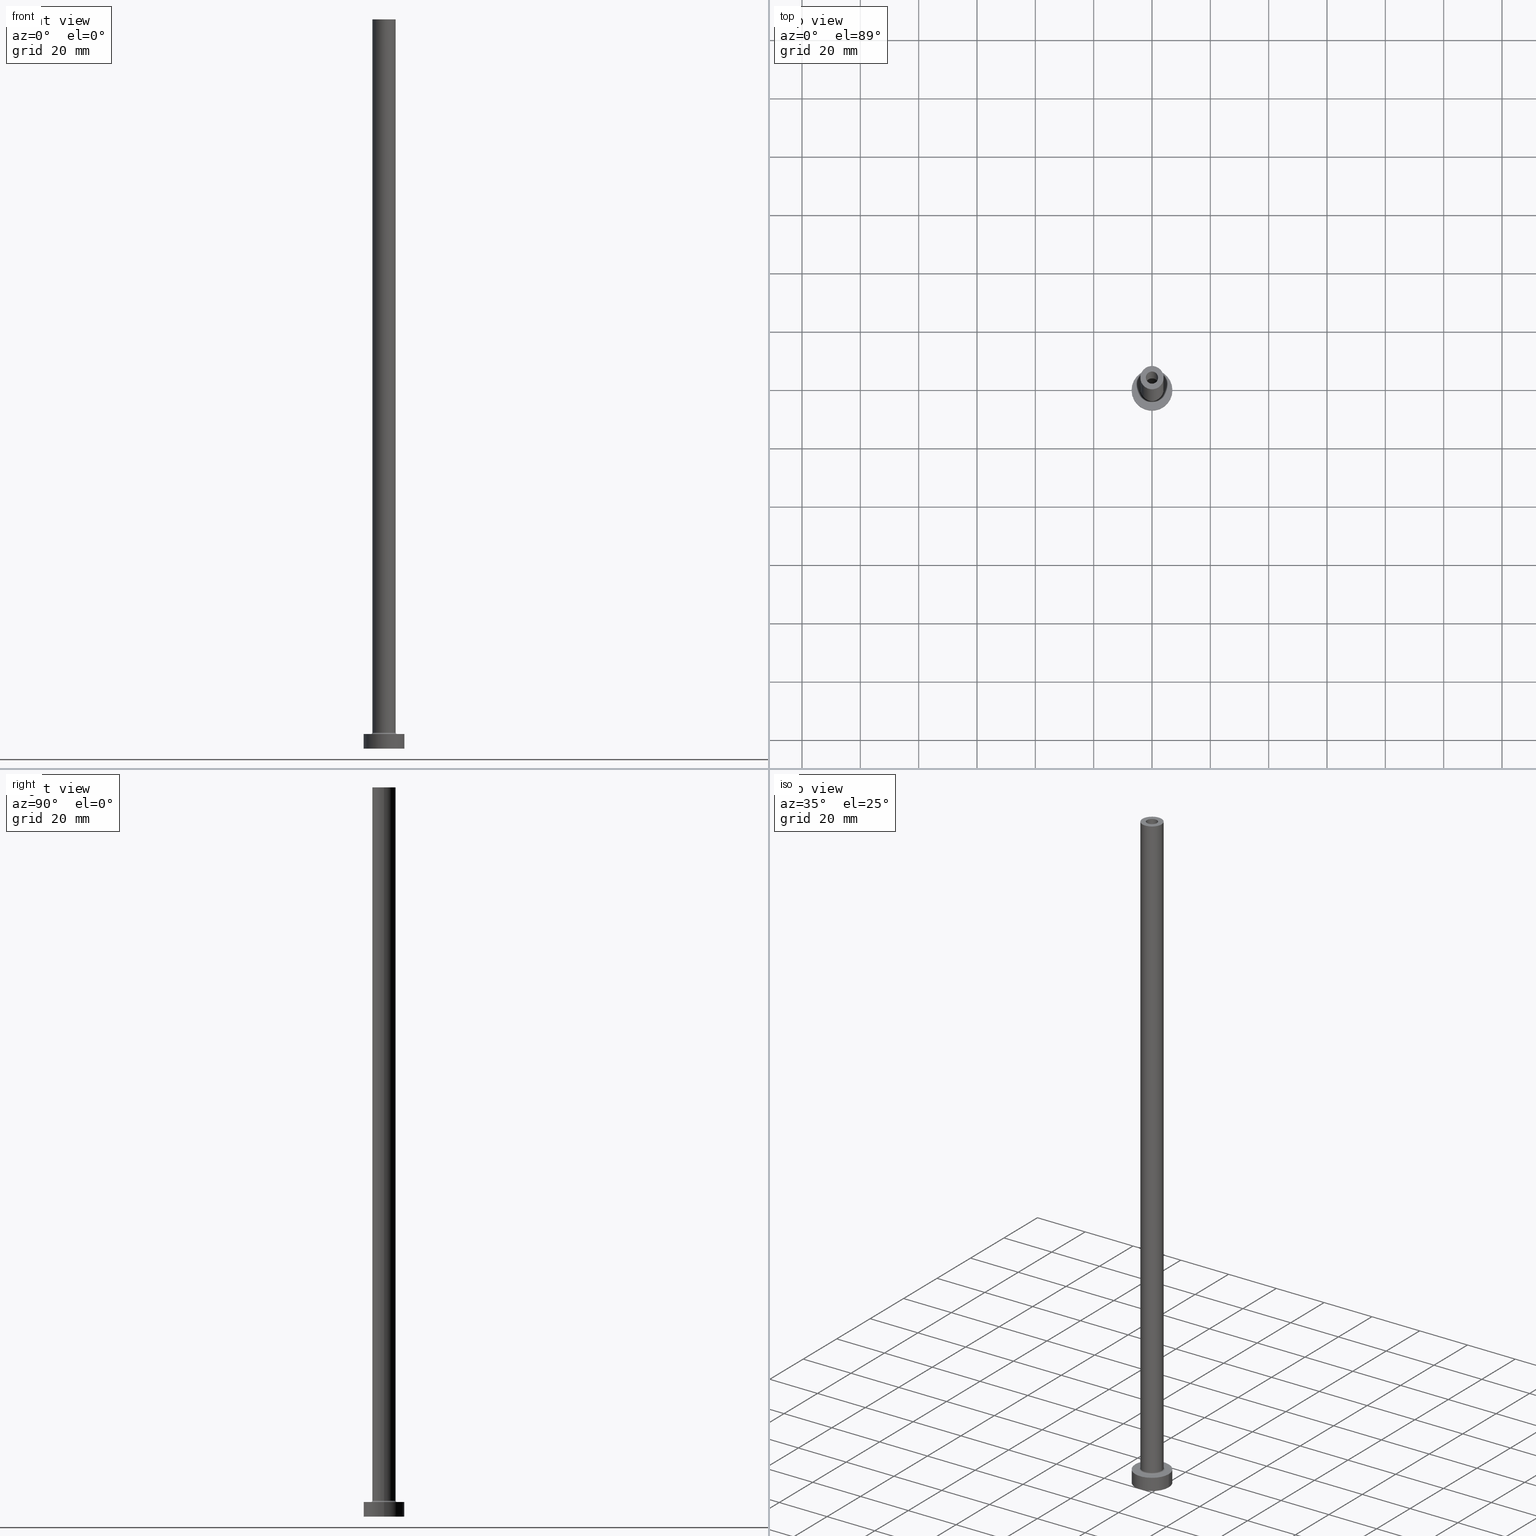
[diagram: canonical four-view strip — front | top / right | iso, engineering-drawing reading convention]
A machine part, canonical four-view strip (front | top / right | iso — engineering-drawing reading convention). The complete STEP part file that produces these views, byte-faithful:
ISO-10303-21;
HEADER;
FILE_DESCRIPTION (( 'STEP AP203' ),
    '1' );
FILE_NAME ('19cd.STEP',
    '2023-02-13T11:06:25',
    ( '' ),
    ( '' ),
    'SwSTEP 2.0',
    'SolidWorks 2019',
    '' );
FILE_SCHEMA (( 'CONFIG_CONTROL_DESIGN' ));
ENDSEC;

DATA;
#1 = CIRCLE ( 'NONE', #320, 7.000000000000000000 ) ;
#2 = CARTESIAN_POINT ( 'NONE',  ( 0.000000000000000000, 0.000000000000000000, 250.0000000000000000 ) ) ;
#3 = CYLINDRICAL_SURFACE ( 'NONE', #330, 2.100000000000000089 ) ;
#4 = ADVANCED_FACE ( 'NONE', ( #84 ), #351, .T. ) ;
#5 = DIRECTION ( 'NONE',  ( 0.000000000000000000, 0.000000000000000000, 1.000000000000000000 ) ) ;
#6 = DIRECTION ( 'NONE',  ( 1.000000000000000000, 0.000000000000000000, 0.000000000000000000 ) ) ;
#7 = VERTEX_POINT ( 'NONE', #276 ) ;
#8 = CARTESIAN_POINT ( 'NONE',  ( 0.000000000000000000, 0.000000000000000000, 5.500000000000005329 ) ) ;
#9 = ORIENTED_EDGE ( 'NONE', *, *, #43, .F. ) ;
#10 = PLANE ( 'NONE',  #29 ) ;
#11 = EDGE_CURVE ( 'NONE', #65, #7, #426, .T. ) ;
#12 = DATE_TIME_ROLE ( 'creation_date' ) ;
#13 = ORIENTED_EDGE ( 'NONE', *, *, #403, .F. ) ;
#14 = DIRECTION ( 'NONE',  ( 1.000000000000000000, 0.000000000000000000, -0.000000000000000000 ) ) ;
#15 = PERSON_AND_ORGANIZATION_ROLE ( 'design_supplier' ) ;
#16 = TOROIDAL_SURFACE ( 'NONE', #383, 4.500000000000000888, 0.5000000000000000000 ) ;
#17 = ORIENTED_EDGE ( 'NONE', *, *, #91, .T. ) ;
#18 = DIRECTION ( 'NONE',  ( 1.000000000000000000, 0.000000000000000000, 0.000000000000000000 ) ) ;
#19 = CIRCLE ( 'NONE', #419, 2.250000000000000000 ) ;
#20 = DATE_TIME_ROLE ( 'classification_date' ) ;
#21 = VECTOR ( 'NONE', #436, 1000.000000000000000 ) ;
#22 = CIRCLE ( 'NONE', #456, 2.250000000000000000 ) ;
#23 = EDGE_LOOP ( 'NONE', ( #177, #112, #259, #116 ) ) ;
#24 = CARTESIAN_POINT ( 'NONE',  ( 0.000000000000000000, 0.000000000000000000, 205.0000000000000284 ) ) ;
#25 = FACE_BOUND ( 'NONE', #77, .T. ) ;
#26 = ADVANCED_FACE ( 'NONE', ( #25, #159 ), #195, .T. ) ;
#27 = AXIS2_PLACEMENT_3D ( 'NONE', #128, #378, #451 ) ;
#28 = CARTESIAN_POINT ( 'NONE',  ( 0.000000000000000000, 0.000000000000000000, 250.0000000000000000 ) ) ;
#29 = AXIS2_PLACEMENT_3D ( 'NONE', #188, #78, #340 ) ;
#30 = CIRCLE ( 'NONE', #173, 2.100000000000000089 ) ;
#31 = CARTESIAN_POINT ( 'NONE',  ( 0.000000000000000000, 0.000000000000000000, 0.000000000000000000 ) ) ;
#32 = EDGE_LOOP ( 'NONE', ( #147, #304, #252, #454 ) ) ;
#33 = EDGE_CURVE ( 'NONE', #47, #123, #61, .T. ) ;
#34 = FACE_OUTER_BOUND ( 'NONE', #273, .T. ) ;
#35 = CARTESIAN_POINT ( 'NONE',  ( 0.000000000000000000, 0.000000000000000000, 0.000000000000000000 ) ) ;
#36 = MANIFOLD_SOLID_BREP ( 'Odebrat vysunut�m4', #274 ) ;
#37 = DIRECTION ( 'NONE',  ( 1.000000000000000000, 0.000000000000000000, -0.000000000000000000 ) ) ;
#38 = COORDINATED_UNIVERSAL_TIME_OFFSET ( 1, 0, .AHEAD. ) ;
#39 = LOCAL_TIME ( 12, 6, 25.00000000000000000, #114 ) ;
#40 = CIRCLE ( 'NONE', #133, 2.250000000000000000 ) ;
#41 = DIRECTION ( 'NONE',  ( -0.000000000000000000, -0.000000000000000000, -1.000000000000000000 ) ) ;
#42 = LINE ( 'NONE', #238, #119 ) ;
#43 = EDGE_CURVE ( 'NONE', #123, #47, #127, .T. ) ;
#44 = APPLICATION_CONTEXT ( 'configuration controlled 3d designs of mechanical parts and assemblies' ) ;
#45 = FACE_OUTER_BOUND ( 'NONE', #186, .T. ) ;
#46 = LINE ( 'NONE', #113, #277 ) ;
#47 = VERTEX_POINT ( 'NONE', #246 ) ;
#48 = EDGE_CURVE ( 'NONE', #369, #150, #93, .T. ) ;
#49 = CARTESIAN_POINT ( 'NONE',  ( 0.000000000000000000, 0.000000000000000000, 5.500000000000005329 ) ) ;
#50 = ORIENTED_EDGE ( 'NONE', *, *, #385, .F. ) ;
#51 = DIRECTION ( 'NONE',  ( -0.000000000000000000, -0.000000000000000000, -1.000000000000000000 ) ) ;
#52 = PERSON_AND_ORGANIZATION ( #349, #234 ) ;
#53 = ORIENTED_EDGE ( 'NONE', *, *, #280, .T. ) ;
#54 = CARTESIAN_POINT ( 'NONE',  ( 0.000000000000000000, 0.000000000000000000, 5.000000000000000000 ) ) ;
#55 = DATE_AND_TIME ( #413, #397 ) ;
#56 = EDGE_LOOP ( 'NONE', ( #9, #271, #334, #368 ) ) ;
#57 = AXIS2_PLACEMENT_3D ( 'NONE', #199, #356, #74 ) ;
#58 = EDGE_CURVE ( 'NONE', #146, #263, #67, .T. ) ;
#59 = APPROVAL_PERSON_ORGANIZATION ( #408, #232, #193 ) ;
#60 = DIRECTION ( 'NONE',  ( 1.000000000000000000, 0.000000000000000000, 0.000000000000000000 ) ) ;
#61 = CIRCLE ( 'NONE', #324, 7.000000000000000000 ) ;
#62 = CC_DESIGN_PERSON_AND_ORGANIZATION_ASSIGNMENT ( #328, #402, ( #66 ) ) ;
#63 = AXIS2_PLACEMENT_3D ( 'NONE', #2, #141, #105 ) ;
#64 = CYLINDRICAL_SURFACE ( 'NONE', #425, 4.000000000000000000 ) ;
#65 = VERTEX_POINT ( 'NONE', #249 ) ;
#66 = PRODUCT_DEFINITION ( 'NEZN�M�', '', #101, #235 ) ;
#67 = LINE ( 'NONE', #257, #218 ) ;
#68 = ORIENTED_EDGE ( 'NONE', *, *, #345, .F. ) ;
#69 = CYLINDRICAL_SURFACE ( 'NONE', #165, 2.250000000000000000 ) ;
#70 = CARTESIAN_POINT ( 'NONE',  ( 4.500000000000000888, 0.000000000000000000, 5.000000000000002665 ) ) ;
#71 = EDGE_CURVE ( 'NONE', #47, #414, #401, .T. ) ;
#72 = DIRECTION ( 'NONE',  ( 0.000000000000000000, 0.000000000000000000, -1.000000000000000000 ) ) ;
#73 = CIRCLE ( 'NONE', #291, 4.000000000000000000 ) ;
#74 = DIRECTION ( 'NONE',  ( 1.000000000000000000, 0.000000000000000000, 0.000000000000000000 ) ) ;
#75 = FACE_OUTER_BOUND ( 'NONE', #440, .T. ) ;
#76 = AXIS2_PLACEMENT_3D ( 'NONE', #394, #288, #204 ) ;
#77 = EDGE_LOOP ( 'NONE', ( #191, #153 ) ) ;
#78 = DIRECTION ( 'NONE',  ( 0.000000000000000000, 0.000000000000000000, 1.000000000000000000 ) ) ;
#79 = CARTESIAN_POINT ( 'NONE',  ( -2.100000000000000089, 0.000000000000000000, 205.0000000000000284 ) ) ;
#80 = VERTEX_POINT ( 'NONE', #364 ) ;
#81 = FACE_OUTER_BOUND ( 'NONE', #120, .T. ) ;
#82 = AXIS2_PLACEMENT_3D ( 'NONE', #35, #323, #431 ) ;
#83 = VECTOR ( 'NONE', #104, 1000.000000000000000 ) ;
#84 = FACE_OUTER_BOUND ( 'NONE', #23, .T. ) ;
#85 = CARTESIAN_POINT ( 'NONE',  ( -2.250000000000000000, 0.000000000000000000, 205.0000000000000284 ) ) ;
#86 = FACE_BOUND ( 'NONE', #217, .T. ) ;
#87 = APPROVAL_DATE_TIME ( #55, #232 ) ;
#88 = VERTEX_POINT ( 'NONE', #79 ) ;
#89 = ORIENTED_EDGE ( 'NONE', *, *, #424, .F. ) ;
#90 = FACE_OUTER_BOUND ( 'NONE', #255, .T. ) ;
#91 = EDGE_CURVE ( 'NONE', #205, #457, #42, .T. ) ;
#92 = PERSON_AND_ORGANIZATION ( #349, #234 ) ;
#93 = CIRCLE ( 'NONE', #314, 0.5000000000000004441 ) ;
#94 = APPROVAL_PERSON_ORGANIZATION ( #52, #321, #151 ) ;
#95 = CALENDAR_DATE ( 2023, 13, 2 ) ;
#96 = AXIS2_PLACEMENT_3D ( 'NONE', #286, #174, #135 ) ;
#97 = DIRECTION ( 'NONE',  ( 0.000000000000000000, 0.000000000000000000, 1.000000000000000000 ) ) ;
#98 = EDGE_CURVE ( 'NONE', #205, #296, #416, .T. ) ;
#99 = CARTESIAN_POINT ( 'NONE',  ( 4.000000000000000000, 4.898587196589412829E-16, 250.0000000000000000 ) ) ;
#100 = AXIS2_PLACEMENT_3D ( 'NONE', #343, #382, #245 ) ;
#101 = PRODUCT_DEFINITION_FORMATION_WITH_SPECIFIED_SOURCE ( 'LIBOVOLN�', '', #302, .NOT_KNOWN. ) ;
#102 = CC_DESIGN_DATE_AND_TIME_ASSIGNMENT ( #312, #12, ( #66 ) ) ;
#103 = CARTESIAN_POINT ( 'NONE',  ( 0.000000000000000000, 0.000000000000000000, 211.3639610306789507 ) ) ;
#104 = DIRECTION ( 'NONE',  ( -0.000000000000000000, -0.000000000000000000, -1.000000000000000000 ) ) ;
#105 = DIRECTION ( 'NONE',  ( 1.000000000000000000, 0.000000000000000000, 0.000000000000000000 ) ) ;
#106 = DIRECTION ( 'NONE',  ( 0.000000000000000000, 0.000000000000000000, 1.000000000000000000 ) ) ;
#107 = DIRECTION ( 'NONE',  ( 1.000000000000000000, 0.000000000000000000, 0.000000000000000000 ) ) ;
#108 = DIRECTION ( 'NONE',  ( -0.000000000000000000, -0.000000000000000000, -1.000000000000000000 ) ) ;
#109 = DIRECTION ( 'NONE',  ( 0.000000000000000000, 0.000000000000000000, 1.000000000000000000 ) ) ;
#110 = CARTESIAN_POINT ( 'NONE',  ( 0.000000000000000000, 0.000000000000000000, 5.000000000000000000 ) ) ;
#111 = VECTOR ( 'NONE', #108, 1000.000000000000000 ) ;
#112 = ORIENTED_EDGE ( 'NONE', *, *, #424, .T. ) ;
#113 = CARTESIAN_POINT ( 'NONE',  ( -2.100000000000000089, 0.000000000000000000, 250.0000000000000000 ) ) ;
#114 = COORDINATED_UNIVERSAL_TIME_OFFSET ( 1, 0, .AHEAD. ) ;
#115 = ADVANCED_FACE ( 'NONE', ( #140, #283 ), #203, .F. ) ;
#116 = ORIENTED_EDGE ( 'NONE', *, *, #161, .F. ) ;
#117 = AXIS2_PLACEMENT_3D ( 'NONE', #313, #167, #37 ) ;
#118 = CARTESIAN_POINT ( 'NONE',  ( 0.000000000000000000, 0.000000000000000000, 205.0000000000000284 ) ) ;
#119 = VECTOR ( 'NONE', #171, 1000.000000000000000 ) ;
#120 = EDGE_LOOP ( 'NONE', ( #344, #326, #236, #441 ) ) ;
#121 = EDGE_LOOP ( 'NONE', ( #239, #190 ) ) ;
#122 = COORDINATED_UNIVERSAL_TIME_OFFSET ( 1, 0, .AHEAD. ) ;
#123 = VERTEX_POINT ( 'NONE', #211 ) ;
#124 = ADVANCED_FACE ( 'NONE', ( #461 ), #3, .F. ) ;
#125 = ORIENTED_EDGE ( 'NONE', *, *, #310, .T. ) ;
#126 = PERSON_AND_ORGANIZATION_ROLE ( 'creator' ) ;
#127 = CIRCLE ( 'NONE', #450, 7.000000000000000000 ) ;
#128 = CARTESIAN_POINT ( 'NONE',  ( 0.000000000000000000, 0.000000000000000000, 250.0000000000000000 ) ) ;
#129 = CC_DESIGN_APPROVAL ( #321, ( #101 ) ) ;
#130 = CC_DESIGN_DATE_AND_TIME_ASSIGNMENT ( #301, #20, ( #164 ) ) ;
#131 = ORIENTED_EDGE ( 'NONE', *, *, #389, .F. ) ;
#132 = AXIS2_PLACEMENT_3D ( 'NONE', #372, #222, #264 ) ;
#133 = AXIS2_PLACEMENT_3D ( 'NONE', #24, #183, #269 ) ;
#134 = ADVANCED_FACE ( 'NONE', ( #75 ), #16, .F. ) ;
#135 = DIRECTION ( 'NONE',  ( 1.000000000000000000, 0.000000000000000000, 0.000000000000000000 ) ) ;
#136 = CARTESIAN_POINT ( 'NONE',  ( 0.000000000000000000, 0.000000000000000000, 250.0000000000000000 ) ) ;
#137 = EDGE_CURVE ( 'NONE', #88, #457, #138, .T. ) ;
#138 = CIRCLE ( 'NONE', #305, 2.100000000000000089 ) ;
#139 = CARTESIAN_POINT ( 'NONE',  ( 0.000000000000000000, 0.000000000000000000, 250.0000000000000000 ) ) ;
#140 = FACE_BOUND ( 'NONE', #121, .T. ) ;
#141 = DIRECTION ( 'NONE',  ( 0.000000000000000000, 0.000000000000000000, 1.000000000000000000 ) ) ;
#142 = DIRECTION ( 'NONE',  ( 0.000000000000000000, 0.000000000000000000, -1.000000000000000000 ) ) ;
#143 = APPROVAL_ROLE ( '' ) ;
#144 = DIRECTION ( 'NONE',  ( 0.000000000000000000, 0.000000000000000000, 1.000000000000000000 ) ) ;
#145 = MECHANICAL_CONTEXT ( 'NONE', #44, 'mechanical' ) ;
#146 = VERTEX_POINT ( 'NONE', #391 ) ;
#147 = ORIENTED_EDGE ( 'NONE', *, *, #58, .F. ) ;
#148 = FACE_OUTER_BOUND ( 'NONE', #180, .T. ) ;
#149 = APPROVAL_DATE_TIME ( #231, #321 ) ;
#150 = VERTEX_POINT ( 'NONE', #70 ) ;
#151 = APPROVAL_ROLE ( '' ) ;
#152 = EDGE_CURVE ( 'NONE', #296, #205, #197, .T. ) ;
#153 = ORIENTED_EDGE ( 'NONE', *, *, #98, .F. ) ;
#154 = DIRECTION ( 'NONE',  ( 1.000000000000000000, 0.000000000000000000, 0.000000000000000000 ) ) ;
#155 = CIRCLE ( 'NONE', #63, 4.000000000000000000 ) ;
#156 = VECTOR ( 'NONE', #215, 1000.000000000000000 ) ;
#157 = EDGE_LOOP ( 'NONE', ( #50, #399, #318, #370 ) ) ;
#158 = DIRECTION ( 'NONE',  ( -1.000000000000000000, 1.224646799147351482E-16, 0.000000000000000000 ) ) ;
#159 = FACE_OUTER_BOUND ( 'NONE', #266, .T. ) ;
#160 = DIRECTION ( 'NONE',  ( 1.000000000000000000, 0.000000000000000000, 0.000000000000000000 ) ) ;
#161 = EDGE_CURVE ( 'NONE', #65, #309, #169, .T. ) ;
#162 = DIRECTION ( 'NONE',  ( -1.000000000000000000, 0.000000000000000000, 0.000000000000000000 ) ) ;
#163 = EDGE_CURVE ( 'NONE', #146, #371, #253, .T. ) ;
#164 = SECURITY_CLASSIFICATION ( '', '', #265 ) ;
#165 = AXIS2_PLACEMENT_3D ( 'NONE', #103, #430, #361 ) ;
#166 = DIRECTION ( 'NONE',  ( 0.000000000000000000, 0.000000000000000000, 1.000000000000000000 ) ) ;
#167 = DIRECTION ( 'NONE',  ( 0.000000000000000000, 0.000000000000000000, 1.000000000000000000 ) ) ;
#168 = EDGE_CURVE ( 'NONE', #414, #80, #1, .T. ) ;
#169 = LINE ( 'NONE', #289, #21 ) ;
#170 = ORIENTED_EDGE ( 'NONE', *, *, #11, .F. ) ;
#171 = DIRECTION ( 'NONE',  ( 0.000000000000000000, 0.000000000000000000, -1.000000000000000000 ) ) ;
#172 = DATE_AND_TIME ( #437, #363 ) ;
#173 = AXIS2_PLACEMENT_3D ( 'NONE', #206, #5, #327 ) ;
#174 = DIRECTION ( 'NONE',  ( -0.000000000000000000, -0.000000000000000000, -1.000000000000000000 ) ) ;
#175 = CARTESIAN_POINT ( 'NONE',  ( 4.500000000000000888, 0.000000000000000000, 5.500000000000005329 ) ) ;
#176 = CARTESIAN_POINT ( 'NONE',  ( 0.000000000000000000, 0.000000000000000000, 5.000000000000000000 ) ) ;
#177 = ORIENTED_EDGE ( 'NONE', *, *, #221, .F. ) ;
#178 = FACE_BOUND ( 'NONE', #374, .T. ) ;
#179 = APPROVAL_PERSON_ORGANIZATION ( #207, #202, #143 ) ;
#180 = EDGE_LOOP ( 'NONE', ( #220, #292 ) ) ;
#181 = CARTESIAN_POINT ( 'NONE',  ( 0.000000000000000000, 0.000000000000000000, 0.000000000000000000 ) ) ;
#182 = ORIENTED_EDGE ( 'NONE', *, *, #310, .F. ) ;
#183 = DIRECTION ( 'NONE',  ( 0.000000000000000000, 0.000000000000000000, 1.000000000000000000 ) ) ;
#184 = EDGE_CURVE ( 'NONE', #123, #80, #237, .T. ) ;
#185 = APPROVAL_STATUS ( 'not_yet_approved' ) ;
#186 = EDGE_LOOP ( 'NONE', ( #53, #388, #261, #131 ) ) ;
#187 = ORIENTED_EDGE ( 'NONE', *, *, #403, .T. ) ;
#188 = CARTESIAN_POINT ( 'NONE',  ( 0.000000000000000000, 0.000000000000000000, 5.000000000000000000 ) ) ;
#189 = SHAPE_DEFINITION_REPRESENTATION ( #444, #251 ) ;
#190 = ORIENTED_EDGE ( 'NONE', *, *, #455, .F. ) ;
#191 = ORIENTED_EDGE ( 'NONE', *, *, #152, .F. ) ;
#192 = DIRECTION ( 'NONE',  ( 0.000000000000000000, 0.000000000000000000, 1.000000000000000000 ) ) ;
#193 = APPROVAL_ROLE ( '' ) ;
#194 = AXIS2_PLACEMENT_3D ( 'NONE', #226, #219, #308 ) ;
#195 = PLANE ( 'NONE',  #117 ) ;
#196 = ADVANCED_FACE ( 'NONE', ( #459 ), #359, .T. ) ;
#197 = CIRCLE ( 'NONE', #100, 2.100000000000000089 ) ;
#198 = EDGE_CURVE ( 'NONE', #150, #342, #201, .T. ) ;
#199 = CARTESIAN_POINT ( 'NONE',  ( 0.000000000000000000, 0.000000000000000000, 205.0000000000000284 ) ) ;
#200 = VECTOR ( 'NONE', #317, 1000.000000000000000 ) ;
#201 = CIRCLE ( 'NONE', #96, 4.500000000000000888 ) ;
#202 = APPROVAL ( #362, 'NEUR�EN�' ) ;
#203 = PLANE ( 'NONE',  #82 ) ;
#204 = DIRECTION ( 'NONE',  ( 1.000000000000000000, 0.000000000000000000, 0.000000000000000000 ) ) ;
#205 = VERTEX_POINT ( 'NONE', #279 ) ;
#206 = CARTESIAN_POINT ( 'NONE',  ( 0.000000000000000000, 0.000000000000000000, 205.0000000000000284 ) ) ;
#207 = PERSON_AND_ORGANIZATION ( #349, #234 ) ;
#208 = DIRECTION ( 'NONE',  ( 1.000000000000000000, 0.000000000000000000, 0.000000000000000000 ) ) ;
#209 = LOCAL_TIME ( 12, 6, 25.00000000000000000, #406 ) ;
#210 = DIRECTION ( 'NONE',  ( 1.000000000000000000, 0.000000000000000000, 0.000000000000000000 ) ) ;
#211 = CARTESIAN_POINT ( 'NONE',  ( 7.000000000000000000, 8.572527594031473190E-16, 5.000000000000000000 ) ) ;
#212 = PERSON_AND_ORGANIZATION_ROLE ( 'design_owner' ) ;
#213 = EDGE_CURVE ( 'NONE', #342, #150, #268, .T. ) ;
#214 = ORIENTED_EDGE ( 'NONE', *, *, #198, .T. ) ;
#215 = DIRECTION ( 'NONE',  ( 0.000000000000000000, 0.000000000000000000, -1.000000000000000000 ) ) ;
#216 = COORDINATED_UNIVERSAL_TIME_OFFSET ( 1, 0, .AHEAD. ) ;
#217 = EDGE_LOOP ( 'NONE', ( #404, #247 ) ) ;
#218 = VECTOR ( 'NONE', #460, 1000.000000000000000 ) ;
#219 = DIRECTION ( 'NONE',  ( 0.000000000000000000, 0.000000000000000000, 1.000000000000000000 ) ) ;
#220 = ORIENTED_EDGE ( 'NONE', *, *, #280, .F. ) ;
#221 = EDGE_CURVE ( 'NONE', #7, #65, #155, .T. ) ;
#222 = DIRECTION ( 'NONE',  ( 0.000000000000000000, 0.000000000000000000, -1.000000000000000000 ) ) ;
#223 = CALENDAR_DATE ( 2023, 13, 2 ) ;
#224 = FACE_OUTER_BOUND ( 'NONE', #32, .T. ) ;
#225 = ORIENTED_EDGE ( 'NONE', *, *, #221, .T. ) ;
#226 = CARTESIAN_POINT ( 'NONE',  ( 0.000000000000000000, 0.000000000000000000, 0.000000000000000000 ) ) ;
#227 = ORIENTED_EDGE ( 'NONE', *, *, #152, .T. ) ;
#228 = CC_DESIGN_SECURITY_CLASSIFICATION ( #164, ( #101 ) ) ;
#229 = CARTESIAN_POINT ( 'NONE',  ( 0.000000000000000000, 0.000000000000000000, 5.500000000000005329 ) ) ;
#230 = AXIS2_PLACEMENT_3D ( 'NONE', #176, #41, #392 ) ;
#231 = DATE_AND_TIME ( #449, #209 ) ;
#232 = APPROVAL ( #445, 'NEUR�EN�' ) ;
#233 = EDGE_CURVE ( 'NONE', #457, #88, #30, .T. ) ;
#234 = ORGANIZATION ( 'NEUR�EN�', 'NEUR�EN�', '' ) ;
#235 = DESIGN_CONTEXT ( 'detailed design', #435, 'design' ) ;
#236 = ORIENTED_EDGE ( 'NONE', *, *, #71, .T. ) ;
#237 = LINE ( 'NONE', #390, #111 ) ;
#238 = CARTESIAN_POINT ( 'NONE',  ( 2.100000000000000089, 2.571758278209441464E-16, 250.0000000000000000 ) ) ;
#239 = ORIENTED_EDGE ( 'NONE', *, *, #284, .F. ) ;
#240 = VERTEX_POINT ( 'NONE', #427 ) ;
#241 = ADVANCED_FACE ( 'NONE', ( #34 ), #242, .F. ) ;
#242 = CYLINDRICAL_SURFACE ( 'NONE', #307, 2.100000000000000089 ) ;
#243 = DIRECTION ( 'NONE',  ( 1.000000000000000000, 0.000000000000000000, 0.000000000000000000 ) ) ;
#244 = CARTESIAN_POINT ( 'NONE',  ( 2.100000000000000089, 2.571758278209441464E-16, 205.0000000000000284 ) ) ;
#245 = DIRECTION ( 'NONE',  ( 1.000000000000000000, 0.000000000000000000, 0.000000000000000000 ) ) ;
#246 = CARTESIAN_POINT ( 'NONE',  ( -7.000000000000000000, 0.000000000000000000, 5.000000000000000000 ) ) ;
#247 = ORIENTED_EDGE ( 'NONE', *, *, #233, .T. ) ;
#248 = ADVANCED_FACE ( 'NONE', ( #45 ), #69, .F. ) ;
#249 = CARTESIAN_POINT ( 'NONE',  ( -4.000000000000000000, 0.000000000000000000, 250.0000000000000000 ) ) ;
#250 = PERSON_AND_ORGANIZATION ( #349, #234 ) ;
#251 = ADVANCED_BREP_SHAPE_REPRESENTATION ( '19cd', ( #36, #76 ), #347 ) ;
#252 = ORIENTED_EDGE ( 'NONE', *, *, #389, .T. ) ;
#253 = CIRCLE ( 'NONE', #57, 2.250000000000000000 ) ;
#254 = AXIS2_PLACEMENT_3D ( 'NONE', #49, #439, #154 ) ;
#255 = EDGE_LOOP ( 'NONE', ( #339, #409 ) ) ;
#256 = CYLINDRICAL_SURFACE ( 'NONE', #422, 7.000000000000000000 ) ;
#257 = CARTESIAN_POINT ( 'NONE',  ( 2.250000000000000000, 2.755455298081543792E-16, 211.3639610306789507 ) ) ;
#258 = APPROVAL_DATE_TIME ( #172, #202 ) ;
#259 = ORIENTED_EDGE ( 'NONE', *, *, #316, .T. ) ;
#260 = DIRECTION ( 'NONE',  ( 1.000000000000000000, 0.000000000000000000, 0.000000000000000000 ) ) ;
#261 = ORIENTED_EDGE ( 'NONE', *, *, #455, .T. ) ;
#262 = AXIS2_PLACEMENT_3D ( 'NONE', #420, #97, #60 ) ;
#263 = VERTEX_POINT ( 'NONE', #386 ) ;
#264 = DIRECTION ( 'NONE',  ( -1.000000000000000000, 0.000000000000000000, 0.000000000000000000 ) ) ;
#265 = SECURITY_CLASSIFICATION_LEVEL ( 'unclassified' ) ;
#266 = EDGE_LOOP ( 'NONE', ( #410, #225 ) ) ;
#267 = EDGE_LOOP ( 'NONE', ( #89, #170, #306, #125 ) ) ;
#268 = CIRCLE ( 'NONE', #230, 4.500000000000000888 ) ;
#269 = DIRECTION ( 'NONE',  ( 1.000000000000000000, 0.000000000000000000, 0.000000000000000000 ) ) ;
#270 = PERSON_AND_ORGANIZATION ( #349, #234 ) ;
#271 = ORIENTED_EDGE ( 'NONE', *, *, #184, .T. ) ;
#272 = CARTESIAN_POINT ( 'NONE',  ( 4.000000000000000000, 4.898587196589412829E-16, 5.500000000000005329 ) ) ;
#273 = EDGE_LOOP ( 'NONE', ( #227, #17, #299, #13 ) ) ;
#274 = CLOSED_SHELL ( 'NONE', ( #241, #248, #134, #4, #196, #373, #295, #115, #421, #26, #411, #337, #329, #124 ) ) ;
#275 = CC_DESIGN_PERSON_AND_ORGANIZATION_ASSIGNMENT ( #270, #350, ( #164 ) ) ;
#276 = CARTESIAN_POINT ( 'NONE',  ( 4.000000000000000000, 4.898587196589412829E-16, 250.0000000000000000 ) ) ;
#277 = VECTOR ( 'NONE', #335, 1000.000000000000000 ) ;
#278 = AXIS2_PLACEMENT_3D ( 'NONE', #229, #380, #160 ) ;
#279 = CARTESIAN_POINT ( 'NONE',  ( 2.100000000000000089, 2.571758278209441464E-16, 250.0000000000000000 ) ) ;
#280 = EDGE_CURVE ( 'NONE', #371, #146, #40, .T. ) ;
#281 = DIRECTION ( 'NONE',  ( -1.000000000000000000, 0.000000000000000000, 0.000000000000000000 ) ) ;
#282 = APPLICATION_PROTOCOL_DEFINITION ( 'international standard', 'config_control_design', 1994, #435 ) ;
#283 = FACE_OUTER_BOUND ( 'NONE', #293, .T. ) ;
#284 = EDGE_CURVE ( 'NONE', #240, #263, #19, .T. ) ;
#285 = DIRECTION ( 'NONE',  ( -0.000000000000000000, -0.000000000000000000, -1.000000000000000000 ) ) ;
#286 = CARTESIAN_POINT ( 'NONE',  ( 0.000000000000000000, 0.000000000000000000, 5.000000000000000000 ) ) ;
#287 = DIRECTION ( 'NONE',  ( -1.000000000000000000, 0.000000000000000000, 0.000000000000000000 ) ) ;
#288 = DIRECTION ( 'NONE',  ( 0.000000000000000000, 0.000000000000000000, 1.000000000000000000 ) ) ;
#289 = CARTESIAN_POINT ( 'NONE',  ( -4.000000000000000000, 0.000000000000000000, 250.0000000000000000 ) ) ;
#290 = DIRECTION ( 'NONE',  ( 1.000000000000000000, 0.000000000000000000, 0.000000000000000000 ) ) ;
#291 = AXIS2_PLACEMENT_3D ( 'NONE', #8, #192, #260 ) ;
#292 = ORIENTED_EDGE ( 'NONE', *, *, #163, .F. ) ;
#293 = EDGE_LOOP ( 'NONE', ( #336, #68 ) ) ;
#294 = DIRECTION ( 'NONE',  ( -1.000000000000000000, 0.000000000000000000, 0.000000000000000000 ) ) ;
#295 = ADVANCED_FACE ( 'NONE', ( #178, #90 ), #10, .T. ) ;
#296 = VERTEX_POINT ( 'NONE', #300 ) ;
#297 = PLANE ( 'NONE',  #376 ) ;
#298 = ORIENTED_EDGE ( 'NONE', *, *, #91, .F. ) ;
#299 = ORIENTED_EDGE ( 'NONE', *, *, #137, .F. ) ;
#300 = CARTESIAN_POINT ( 'NONE',  ( -2.100000000000000089, 0.000000000000000000, 250.0000000000000000 ) ) ;
#301 = DATE_AND_TIME ( #95, #39 ) ;
#302 = PRODUCT ( '19cd', '19cd', '', ( #145 ) ) ;
#303 = CC_DESIGN_APPROVAL ( #202, ( #66 ) ) ;
#304 = ORIENTED_EDGE ( 'NONE', *, *, #163, .T. ) ;
#305 = AXIS2_PLACEMENT_3D ( 'NONE', #433, #144, #243 ) ;
#306 = ORIENTED_EDGE ( 'NONE', *, *, #161, .T. ) ;
#307 = AXIS2_PLACEMENT_3D ( 'NONE', #139, #432, #322 ) ;
#308 = DIRECTION ( 'NONE',  ( 1.000000000000000000, 0.000000000000000000, 0.000000000000000000 ) ) ;
#309 = VERTEX_POINT ( 'NONE', #412 ) ;
#310 = EDGE_CURVE ( 'NONE', #309, #369, #73, .T. ) ;
#311 = LINE ( 'NONE', #400, #156 ) ;
#312 = DATE_AND_TIME ( #223, #395 ) ;
#313 = CARTESIAN_POINT ( 'NONE',  ( 0.000000000000000000, 0.000000000000000000, 250.0000000000000000 ) ) ;
#314 = AXIS2_PLACEMENT_3D ( 'NONE', #175, #393, #72 ) ;
#315 = CIRCLE ( 'NONE', #194, 7.000000000000000000 ) ;
#316 = EDGE_CURVE ( 'NONE', #369, #309, #365, .T. ) ;
#317 = DIRECTION ( 'NONE',  ( -0.000000000000000000, -0.000000000000000000, -1.000000000000000000 ) ) ;
#318 = ORIENTED_EDGE ( 'NONE', *, *, #48, .T. ) ;
#319 = CIRCLE ( 'NONE', #379, 0.5000000000000004441 ) ;
#320 = AXIS2_PLACEMENT_3D ( 'NONE', #31, #166, #210 ) ;
#321 = APPROVAL ( #185, 'NEUR�EN�' ) ;
#322 = DIRECTION ( 'NONE',  ( -1.000000000000000000, 0.000000000000000000, 0.000000000000000000 ) ) ;
#323 = DIRECTION ( 'NONE',  ( 0.000000000000000000, 0.000000000000000000, 1.000000000000000000 ) ) ;
#324 = AXIS2_PLACEMENT_3D ( 'NONE', #110, #109, #290 ) ;
#325 = APPLICATION_PROTOCOL_DEFINITION ( 'international standard', 'config_control_design', 1994, #44 ) ;
#326 = ORIENTED_EDGE ( 'NONE', *, *, #33, .F. ) ;
#327 = DIRECTION ( 'NONE',  ( 1.000000000000000000, 0.000000000000000000, 0.000000000000000000 ) ) ;
#328 = PERSON_AND_ORGANIZATION ( #349, #234 ) ;
#329 = ADVANCED_FACE ( 'NONE', ( #86, #148 ), #297, .F. ) ;
#330 = AXIS2_PLACEMENT_3D ( 'NONE', #136, #142, #287 ) ;
#331 = DIRECTION ( 'NONE',  ( 0.000000000000000000, 0.000000000000000000, 1.000000000000000000 ) ) ;
#332 = CARTESIAN_POINT ( 'NONE',  ( 0.000000000000000000, 0.000000000000000000, 5.000000000000000000 ) ) ;
#333 = AXIS2_PLACEMENT_3D ( 'NONE', #429, #331, #357 ) ;
#334 = ORIENTED_EDGE ( 'NONE', *, *, #345, .T. ) ;
#335 = DIRECTION ( 'NONE',  ( 0.000000000000000000, 0.000000000000000000, -1.000000000000000000 ) ) ;
#336 = ORIENTED_EDGE ( 'NONE', *, *, #168, .F. ) ;
#337 = ADVANCED_FACE ( 'NONE', ( #224 ), #442, .F. ) ;
#338 = ORIENTED_EDGE ( 'NONE', *, *, #48, .F. ) ;
#339 = ORIENTED_EDGE ( 'NONE', *, *, #33, .T. ) ;
#340 = DIRECTION ( 'NONE',  ( 1.000000000000000000, 0.000000000000000000, -0.000000000000000000 ) ) ;
#341 = PERSON_AND_ORGANIZATION ( #349, #234 ) ;
#342 = VERTEX_POINT ( 'NONE', #407 ) ;
#343 = CARTESIAN_POINT ( 'NONE',  ( 0.000000000000000000, 0.000000000000000000, 250.0000000000000000 ) ) ;
#344 = ORIENTED_EDGE ( 'NONE', *, *, #184, .F. ) ;
#345 = EDGE_CURVE ( 'NONE', #80, #414, #315, .T. ) ;
#346 = ORIENTED_EDGE ( 'NONE', *, *, #233, .F. ) ;
#347 =( GEOMETRIC_REPRESENTATION_CONTEXT ( 3 ) GLOBAL_UNCERTAINTY_ASSIGNED_CONTEXT ( ( #384 ) ) GLOBAL_UNIT_ASSIGNED_CONTEXT ( ( #458, #398, #353 ) ) REPRESENTATION_CONTEXT ( 'NONE', 'WORKASPACE' ) );
#348 = CARTESIAN_POINT ( 'NONE',  ( -4.500000000000000888, 5.510910596163089556E-16, 5.500000000000005329 ) ) ;
#349 = PERSON ( 'NEUR�EN�', 'NEUR�EN�', 'NEUR�EN�', ('NEUR�EN�'), ('NEUR�EN�'), ('NEUR�EN�') ) ;
#350 = PERSON_AND_ORGANIZATION_ROLE ( 'classification_officer' ) ;
#351 = CYLINDRICAL_SURFACE ( 'NONE', #27, 4.000000000000000000 ) ;
#352 = DIRECTION ( 'NONE',  ( -0.000000000000000000, -0.000000000000000000, -1.000000000000000000 ) ) ;
#353 =( NAMED_UNIT ( * ) SI_UNIT ( $, .STERADIAN. ) SOLID_ANGLE_UNIT ( ) );
#354 = PRODUCT_RELATED_PRODUCT_CATEGORY ( 'detail', '', ( #302 ) ) ;
#355 = TOROIDAL_SURFACE ( 'NONE', #278, 4.500000000000000888, 0.5000000000000000000 ) ;
#356 = DIRECTION ( 'NONE',  ( 0.000000000000000000, 0.000000000000000000, 1.000000000000000000 ) ) ;
#357 = DIRECTION ( 'NONE',  ( 1.000000000000000000, 0.000000000000000000, 0.000000000000000000 ) ) ;
#358 = ORIENTED_EDGE ( 'NONE', *, *, #213, .T. ) ;
#359 = CYLINDRICAL_SURFACE ( 'NONE', #377, 7.000000000000000000 ) ;
#360 = CARTESIAN_POINT ( 'NONE',  ( 0.000000000000000000, 0.000000000000000000, 5.000000000000000000 ) ) ;
#361 = DIRECTION ( 'NONE',  ( -1.000000000000000000, 0.000000000000000000, 0.000000000000000000 ) ) ;
#362 = APPROVAL_STATUS ( 'not_yet_approved' ) ;
#363 = LOCAL_TIME ( 12, 6, 25.00000000000000000, #38 ) ;
#364 = CARTESIAN_POINT ( 'NONE',  ( 7.000000000000000000, 8.572527594031473190E-16, 0.000000000000000000 ) ) ;
#365 = CIRCLE ( 'NONE', #254, 4.000000000000000000 ) ;
#366 = DIRECTION ( 'NONE',  ( -0.000000000000000000, -0.000000000000000000, -1.000000000000000000 ) ) ;
#367 = CARTESIAN_POINT ( 'NONE',  ( 0.000000000000000000, 0.000000000000000000, 5.500000000000005329 ) ) ;
#368 = ORIENTED_EDGE ( 'NONE', *, *, #71, .F. ) ;
#369 = VERTEX_POINT ( 'NONE', #272 ) ;
#370 = ORIENTED_EDGE ( 'NONE', *, *, #213, .F. ) ;
#371 = VERTEX_POINT ( 'NONE', #85 ) ;
#372 = CARTESIAN_POINT ( 'NONE',  ( 0.000000000000000000, 0.000000000000000000, 211.3639610306789507 ) ) ;
#373 = ADVANCED_FACE ( 'NONE', ( #81 ), #256, .T. ) ;
#374 = EDGE_LOOP ( 'NONE', ( #214, #358 ) ) ;
#375 = DIRECTION ( 'NONE',  ( 0.000000000000000000, 0.000000000000000000, 1.000000000000000000 ) ) ;
#376 = AXIS2_PLACEMENT_3D ( 'NONE', #118, #375, #14 ) ;
#377 = AXIS2_PLACEMENT_3D ( 'NONE', #332, #366, #281 ) ;
#378 = DIRECTION ( 'NONE',  ( -0.000000000000000000, -0.000000000000000000, -1.000000000000000000 ) ) ;
#379 = AXIS2_PLACEMENT_3D ( 'NONE', #348, #415, #158 ) ;
#380 = DIRECTION ( 'NONE',  ( 0.000000000000000000, 0.000000000000000000, 1.000000000000000000 ) ) ;
#381 = FACE_OUTER_BOUND ( 'NONE', #267, .T. ) ;
#382 = DIRECTION ( 'NONE',  ( 0.000000000000000000, 0.000000000000000000, 1.000000000000000000 ) ) ;
#383 = AXIS2_PLACEMENT_3D ( 'NONE', #367, #106, #6 ) ;
#384 = UNCERTAINTY_MEASURE_WITH_UNIT (LENGTH_MEASURE( 1.000000000000000082E-05 ), #458, 'distance_accuracy_value', 'NONE');
#385 = EDGE_CURVE ( 'NONE', #309, #342, #319, .T. ) ;
#386 = CARTESIAN_POINT ( 'NONE',  ( 2.250000000000000000, 2.755455298081543792E-16, 0.000000000000000000 ) ) ;
#387 = DIRECTION ( 'NONE',  ( 0.000000000000000000, 0.000000000000000000, 1.000000000000000000 ) ) ;
#388 = ORIENTED_EDGE ( 'NONE', *, *, #58, .T. ) ;
#389 = EDGE_CURVE ( 'NONE', #371, #240, #311, .T. ) ;
#390 = CARTESIAN_POINT ( 'NONE',  ( 7.000000000000000000, 8.572527594031473190E-16, 5.000000000000000000 ) ) ;
#391 = CARTESIAN_POINT ( 'NONE',  ( 2.250000000000000000, 2.755455298081543792E-16, 205.0000000000000284 ) ) ;
#392 = DIRECTION ( 'NONE',  ( 1.000000000000000000, 0.000000000000000000, 0.000000000000000000 ) ) ;
#393 = DIRECTION ( 'NONE',  ( 0.000000000000000000, -1.000000000000000000, 0.000000000000000000 ) ) ;
#394 = CARTESIAN_POINT ( 'NONE',  ( 0.000000000000000000, 0.000000000000000000, 0.000000000000000000 ) ) ;
#395 = LOCAL_TIME ( 12, 6, 25.00000000000000000, #216 ) ;
#396 = CARTESIAN_POINT ( 'NONE',  ( -7.000000000000000000, 0.000000000000000000, 5.000000000000000000 ) ) ;
#397 = LOCAL_TIME ( 12, 6, 25.00000000000000000, #122 ) ;
#398 =( NAMED_UNIT ( * ) PLANE_ANGLE_UNIT ( ) SI_UNIT ( $, .RADIAN. ) );
#399 = ORIENTED_EDGE ( 'NONE', *, *, #316, .F. ) ;
#400 = CARTESIAN_POINT ( 'NONE',  ( -2.250000000000000000, 0.000000000000000000, 211.3639610306789507 ) ) ;
#401 = LINE ( 'NONE', #396, #83 ) ;
#402 = PERSON_AND_ORGANIZATION_ROLE ( 'creator' ) ;
#403 = EDGE_CURVE ( 'NONE', #296, #88, #46, .T. ) ;
#404 = ORIENTED_EDGE ( 'NONE', *, *, #137, .T. ) ;
#405 = FACE_OUTER_BOUND ( 'NONE', #157, .T. ) ;
#406 = COORDINATED_UNIVERSAL_TIME_OFFSET ( 1, 0, .AHEAD. ) ;
#407 = CARTESIAN_POINT ( 'NONE',  ( -4.500000000000000888, 5.510910596163088569E-16, 5.000000000000002665 ) ) ;
#408 = PERSON_AND_ORGANIZATION ( #349, #234 ) ;
#409 = ORIENTED_EDGE ( 'NONE', *, *, #43, .T. ) ;
#410 = ORIENTED_EDGE ( 'NONE', *, *, #11, .T. ) ;
#411 = ADVANCED_FACE ( 'NONE', ( #405 ), #355, .F. ) ;
#412 = CARTESIAN_POINT ( 'NONE',  ( -4.000000000000000000, 0.000000000000000000, 5.500000000000005329 ) ) ;
#413 = CALENDAR_DATE ( 2023, 13, 2 ) ;
#414 = VERTEX_POINT ( 'NONE', #418 ) ;
#415 = DIRECTION ( 'NONE',  ( 1.224646799147353207E-16, 1.000000000000000000, -0.000000000000000000 ) ) ;
#416 = CIRCLE ( 'NONE', #333, 2.100000000000000089 ) ;
#417 = ORIENTED_EDGE ( 'NONE', *, *, #198, .F. ) ;
#418 = CARTESIAN_POINT ( 'NONE',  ( -7.000000000000000000, 0.000000000000000000, 0.000000000000000000 ) ) ;
#419 = AXIS2_PLACEMENT_3D ( 'NONE', #181, #51, #18 ) ;
#420 = CARTESIAN_POINT ( 'NONE',  ( 0.000000000000000000, 0.000000000000000000, 250.0000000000000000 ) ) ;
#421 = ADVANCED_FACE ( 'NONE', ( #381 ), #64, .T. ) ;
#422 = AXIS2_PLACEMENT_3D ( 'NONE', #54, #447, #294 ) ;
#423 = CARTESIAN_POINT ( 'NONE',  ( 0.000000000000000000, 0.000000000000000000, 0.000000000000000000 ) ) ;
#424 = EDGE_CURVE ( 'NONE', #7, #369, #453, .T. ) ;
#425 = AXIS2_PLACEMENT_3D ( 'NONE', #28, #352, #162 ) ;
#426 = CIRCLE ( 'NONE', #262, 4.000000000000000000 ) ;
#427 = CARTESIAN_POINT ( 'NONE',  ( -2.250000000000000000, 0.000000000000000000, 0.000000000000000000 ) ) ;
#428 = CC_DESIGN_PERSON_AND_ORGANIZATION_ASSIGNMENT ( #250, #212, ( #302 ) ) ;
#429 = CARTESIAN_POINT ( 'NONE',  ( 0.000000000000000000, 0.000000000000000000, 250.0000000000000000 ) ) ;
#430 = DIRECTION ( 'NONE',  ( 0.000000000000000000, 0.000000000000000000, -1.000000000000000000 ) ) ;
#431 = DIRECTION ( 'NONE',  ( 1.000000000000000000, 0.000000000000000000, -0.000000000000000000 ) ) ;
#432 = DIRECTION ( 'NONE',  ( 0.000000000000000000, 0.000000000000000000, -1.000000000000000000 ) ) ;
#433 = CARTESIAN_POINT ( 'NONE',  ( 0.000000000000000000, 0.000000000000000000, 205.0000000000000284 ) ) ;
#434 = CC_DESIGN_PERSON_AND_ORGANIZATION_ASSIGNMENT ( #92, #126, ( #101 ) ) ;
#435 = APPLICATION_CONTEXT ( 'configuration controlled 3d designs of mechanical parts and assemblies' ) ;
#436 = DIRECTION ( 'NONE',  ( -0.000000000000000000, -0.000000000000000000, -1.000000000000000000 ) ) ;
#437 = CALENDAR_DATE ( 2023, 13, 2 ) ;
#438 = ORIENTED_EDGE ( 'NONE', *, *, #385, .T. ) ;
#439 = DIRECTION ( 'NONE',  ( 0.000000000000000000, 0.000000000000000000, 1.000000000000000000 ) ) ;
#440 = EDGE_LOOP ( 'NONE', ( #182, #438, #417, #338 ) ) ;
#441 = ORIENTED_EDGE ( 'NONE', *, *, #168, .T. ) ;
#442 = CYLINDRICAL_SURFACE ( 'NONE', #132, 2.250000000000000000 ) ;
#443 = CC_DESIGN_PERSON_AND_ORGANIZATION_ASSIGNMENT ( #341, #15, ( #101 ) ) ;
#444 = PRODUCT_DEFINITION_SHAPE ( 'NONE', 'NONE',  #66 ) ;
#445 = APPROVAL_STATUS ( 'not_yet_approved' ) ;
#446 = EDGE_LOOP ( 'NONE', ( #298, #448, #187, #346 ) ) ;
#447 = DIRECTION ( 'NONE',  ( -0.000000000000000000, -0.000000000000000000, -1.000000000000000000 ) ) ;
#448 = ORIENTED_EDGE ( 'NONE', *, *, #98, .T. ) ;
#449 = CALENDAR_DATE ( 2023, 13, 2 ) ;
#450 = AXIS2_PLACEMENT_3D ( 'NONE', #360, #387, #208 ) ;
#451 = DIRECTION ( 'NONE',  ( -1.000000000000000000, 0.000000000000000000, 0.000000000000000000 ) ) ;
#452 = CC_DESIGN_APPROVAL ( #232, ( #164 ) ) ;
#453 = LINE ( 'NONE', #99, #200 ) ;
#454 = ORIENTED_EDGE ( 'NONE', *, *, #284, .T. ) ;
#455 = EDGE_CURVE ( 'NONE', #263, #240, #22, .T. ) ;
#456 = AXIS2_PLACEMENT_3D ( 'NONE', #423, #285, #107 ) ;
#457 = VERTEX_POINT ( 'NONE', #244 ) ;
#458 =( LENGTH_UNIT ( ) NAMED_UNIT ( * ) SI_UNIT ( .MILLI., .METRE. ) );
#459 = FACE_OUTER_BOUND ( 'NONE', #56, .T. ) ;
#460 = DIRECTION ( 'NONE',  ( 0.000000000000000000, 0.000000000000000000, -1.000000000000000000 ) ) ;
#461 = FACE_OUTER_BOUND ( 'NONE', #446, .T. ) ;
ENDSEC;
END-ISO-10303-21;
